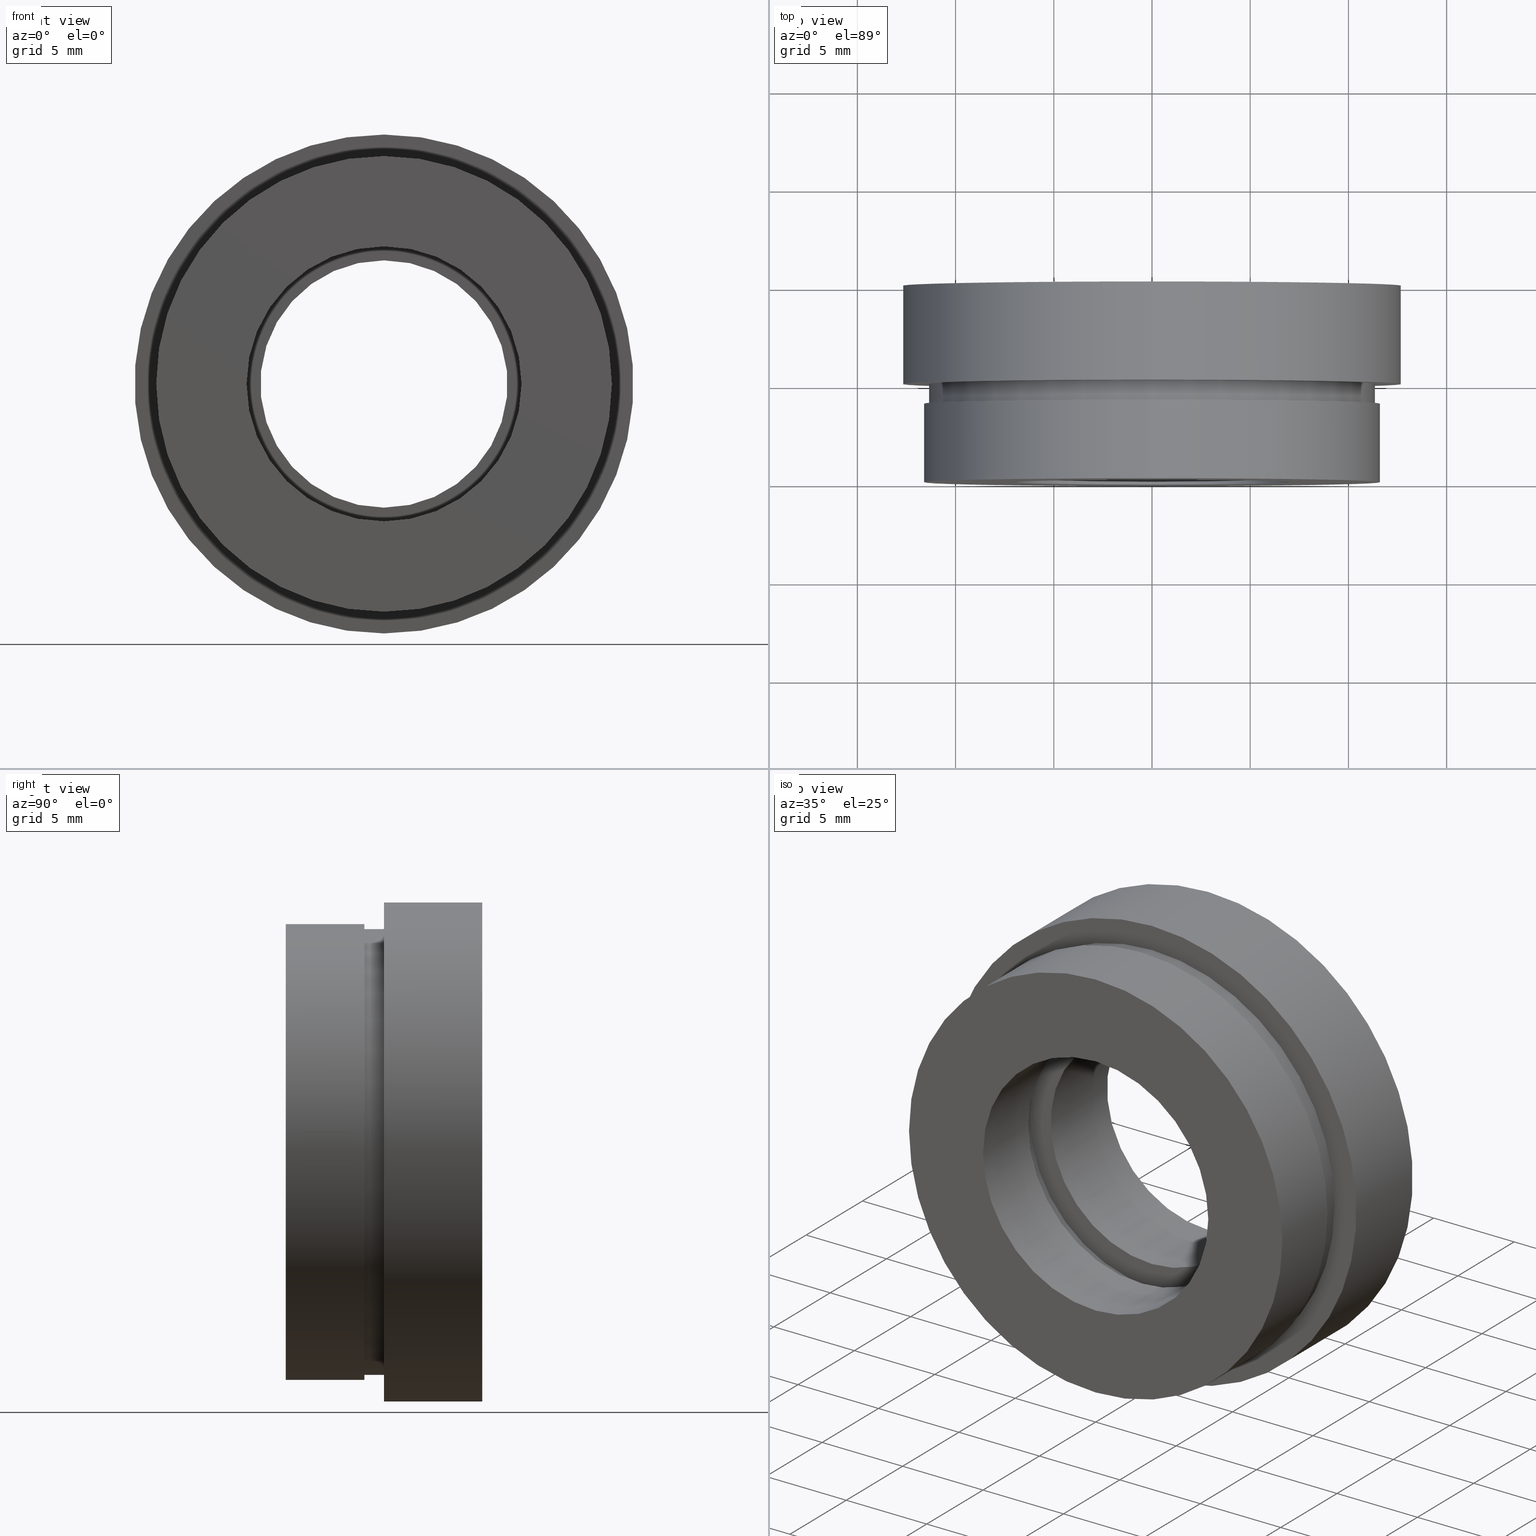
[diagram: canonical four-view strip — front | top / right | iso, engineering-drawing reading convention]
A machine part, canonical four-view strip (front | top / right | iso — engineering-drawing reading convention). The complete STEP part file that produces these views, byte-faithful:
ISO-10303-21;
HEADER;
FILE_DESCRIPTION (( 'STEP AP214' ),
    '1' );
FILE_NAME ('504136.STEP',
    '2019-10-11T01:36:10',
    ( 'user' ),
    ( '΢���й�' ),
    'SwSTEP 2.0',
    'SolidWorks 2016',
    '' );
FILE_SCHEMA (( 'AUTOMOTIVE_DESIGN' ));
ENDSEC;

DATA;
#1 = AXIS2_PLACEMENT_3D ( 'NONE', #479, #616, #488 ) ;
#2 = AXIS2_PLACEMENT_3D ( 'NONE', #32, #214, #441 ) ;
#3 = SURFACE_STYLE_USAGE ( .BOTH. , #409 ) ;
#4 = AXIS2_PLACEMENT_3D ( 'NONE', #496, #594, #503 ) ;
#5 = CARTESIAN_POINT ( 'NONE',  ( 0.0000000000000000000, 13.74468085106383300, 7.000000000000000900 ) ) ;
#6 = CARTESIAN_POINT ( 'NONE',  ( 0.0000000000000000000, 0.0000000000000000000, 0.0000000000000000000 ) ) ;
#7 =( LENGTH_UNIT ( ) NAMED_UNIT ( * ) SI_UNIT ( .MILLI., .METRE. ) );
#8 = ORIENTED_EDGE ( 'NONE', *, *, #388, .F. ) ;
#9 = SHAPE_DEFINITION_REPRESENTATION ( #318, #549 ) ;
#10 = EDGE_LOOP ( 'NONE', ( #489, #607 ) ) ;
#11 = CARTESIAN_POINT ( 'NONE',  ( 0.0000000000000000000, 4.000000000000000000, 0.0000000000000000000 ) ) ;
#12 = MECHANICAL_DESIGN_GEOMETRIC_PRESENTATION_REPRESENTATION (  '', ( #30 ), #422 ) ;
#13 = AXIS2_PLACEMENT_3D ( 'NONE', #235, #245, #289 ) ;
#14 = DIRECTION ( 'NONE',  ( 0.0000000000000000000, 0.0000000000000000000, 1.000000000000000000 ) ) ;
#15 = SURFACE_SIDE_STYLE ('',( #106 ) ) ;
#16 =( GEOMETRIC_REPRESENTATION_CONTEXT ( 3 ) GLOBAL_UNCERTAINTY_ASSIGNED_CONTEXT ( ( #236 ) ) GLOBAL_UNIT_ASSIGNED_CONTEXT ( ( #477, #458, #460 ) ) REPRESENTATION_CONTEXT ( 'NONE', 'WORKASPACE' ) );
#17 = APPLICATION_PROTOCOL_DEFINITION ( 'draft international standard', 'automotive_design', 1998, #405 ) ;
#18 = ADVANCED_FACE ( 'NONE', ( #232 ), #553, .T. ) ;
#19 = UNCERTAINTY_MEASURE_WITH_UNIT (LENGTH_MEASURE( 1.000000000000000100E-005 ), #513, 'distance_accuracy_value', 'NONE');
#20 = VERTEX_POINT ( 'NONE', #261 ) ;
#21 = CIRCLE ( 'NONE', #583, 11.35000000000000000 ) ;
#22 = CARTESIAN_POINT ( 'NONE',  ( 0.0000000000000000000, 5.000000000000000900, 0.0000000000000000000 ) ) ;
#23 = PLANE ( 'NONE',  #599 ) ;
#24 = DIRECTION ( 'NONE',  ( -0.0000000000000000000, 1.000000000000000000, -0.0000000000000000000 ) ) ;
#25 = VECTOR ( 'NONE', #402, 1000.000000000000000 ) ;
#26 = CARTESIAN_POINT ( 'NONE',  ( 0.0000000000000000000, 4.999999999999999100, 0.0000000000000000000 ) ) ;
#27 = CYLINDRICAL_SURFACE ( 'NONE', #280, 7.600000000000000500 ) ;
#28 = CYLINDRICAL_SURFACE ( 'NONE', #325, 12.70000000000000100 ) ;
#29 = ORIENTED_EDGE ( 'NONE', *, *, #425, .F. ) ;
#30 = STYLED_ITEM ( 'NONE', ( #560 ), #563 ) ;
#31 = DIRECTION ( 'NONE',  ( -0.0000000000000000000, 1.000000000000000000, -0.0000000000000000000 ) ) ;
#32 = CARTESIAN_POINT ( 'NONE',  ( 0.0000000000000000000, 0.0000000000000000000, 0.0000000000000000000 ) ) ;
#33 = PRESENTATION_LAYER_ASSIGNMENT (  '', '', ( #40 ) ) ;
#34 = DIRECTION ( 'NONE',  ( -0.0000000000000000000, 1.000000000000000000, -0.0000000000000000000 ) ) ;
#35 = EDGE_LOOP ( 'NONE', ( #302, #528 ) ) ;
#36 = DIRECTION ( 'NONE',  ( 0.0000000000000000000, 0.0000000000000000000, 1.000000000000000000 ) ) ;
#37 = EDGE_LOOP ( 'NONE', ( #588, #603, #536, #210 ) ) ;
#38 = DIRECTION ( 'NONE',  ( 0.0000000000000000000, 0.0000000000000000000, 1.000000000000000000 ) ) ;
#39 = CARTESIAN_POINT ( 'NONE',  ( 0.0000000000000000000, 4.000000000000000000, 0.0000000000000000000 ) ) ;
#40 = STYLED_ITEM ( 'NONE', ( #241 ), #522 ) ;
#41 = FACE_OUTER_BOUND ( 'NONE', #359, .T. ) ;
#42 = CIRCLE ( 'NONE', #365, 11.60000000000000000 ) ;
#43 = CIRCLE ( 'NONE', #111, 11.60000000000000000 ) ;
#44 = CLOSED_SHELL ( 'NONE', ( #326, #333, #61, #181, #523, #273, #563, #557, #225, #69, #476, #384, #123, #381, #18, #606, #522, #129 ) ) ;
#45 = DIRECTION ( 'NONE',  ( 0.0000000000000000000, 0.0000000000000000000, 1.000000000000000000 ) ) ;
#46 = DIRECTION ( 'NONE',  ( 0.0000000000000000000, 0.0000000000000000000, 1.000000000000000000 ) ) ;
#47 = DIRECTION ( 'NONE',  ( 0.0000000000000000000, 0.0000000000000000000, 1.000000000000000000 ) ) ;
#48 = AXIS2_PLACEMENT_3D ( 'NONE', #76, #263, #79 ) ;
#49 = SURFACE_STYLE_FILL_AREA ( #196 ) ;
#50 = LINE ( 'NONE', #131, #64 ) ;
#51 = EDGE_LOOP ( 'NONE', ( #368, #535 ) ) ;
#52 = LINE ( 'NONE', #526, #25 ) ;
#53 = ORIENTED_EDGE ( 'NONE', *, *, #604, .T. ) ;
#54 = DIRECTION ( 'NONE',  ( 0.0000000000000000000, 0.0000000000000000000, 1.000000000000000000 ) ) ;
#55 = AXIS2_PLACEMENT_3D ( 'NONE', #274, #265, #387 ) ;
#56 = CARTESIAN_POINT ( 'NONE',  ( 0.0000000000000000000, 13.74468085106383300, 0.0000000000000000000 ) ) ;
#57 = LINE ( 'NONE', #529, #134 ) ;
#58 = PRESENTATION_STYLE_ASSIGNMENT (( #255 ) ) ;
#59 = ORIENTED_EDGE ( 'NONE', *, *, #478, .T. ) ;
#60 = DIRECTION ( 'NONE',  ( -0.0000000000000000000, 1.000000000000000000, -0.0000000000000000000 ) ) ;
#61 = ADVANCED_FACE ( 'NONE', ( #386 ), #300, .T. ) ;
#62 = DIRECTION ( 'NONE',  ( 0.0000000000000000000, 0.0000000000000000000, 1.000000000000000000 ) ) ;
#63 = SURFACE_STYLE_FILL_AREA ( #251 ) ;
#64 = VECTOR ( 'NONE', #282, 1000.000000000000000 ) ;
#65 = UNCERTAINTY_MEASURE_WITH_UNIT (LENGTH_MEASURE( 1.000000000000000100E-005 ), #455, 'distance_accuracy_value', 'NONE');
#66 = EDGE_LOOP ( 'NONE', ( #217, #584 ) ) ;
#67 = MECHANICAL_DESIGN_GEOMETRIC_PRESENTATION_REPRESENTATION (  '', ( #40 ), #16 ) ;
#68 = DIRECTION ( 'NONE',  ( 0.0000000000000000000, 0.0000000000000000000, 1.000000000000000000 ) ) ;
#69 = ADVANCED_FACE ( 'NONE', ( #186, #170 ), #206, .F. ) ;
#70 = DIRECTION ( 'NONE',  ( 0.0000000000000000000, 0.0000000000000000000, 1.000000000000000000 ) ) ;
#71 = AXIS2_PLACEMENT_3D ( 'NONE', #545, #547, #47 ) ;
#72 = CARTESIAN_POINT ( 'NONE',  ( 1.555301434917138600E-015, 13.74468085106383300, -12.70000000000000100 ) ) ;
#73 = LINE ( 'NONE', #346, #493 ) ;
#74 = ORIENTED_EDGE ( 'NONE', *, *, #618, .T. ) ;
#75 =( GEOMETRIC_REPRESENTATION_CONTEXT ( 3 ) GLOBAL_UNCERTAINTY_ASSIGNED_CONTEXT ( ( #117 ) ) GLOBAL_UNIT_ASSIGNED_CONTEXT ( ( #304, #389, #382 ) ) REPRESENTATION_CONTEXT ( 'NONE', 'WORKASPACE' ) );
#76 = CARTESIAN_POINT ( 'NONE',  ( 0.0000000000000000000, 4.000000000000000000, 0.0000000000000000000 ) ) ;
#77 = ORIENTED_EDGE ( 'NONE', *, *, #395, .T. ) ;
#78 = AXIS2_PLACEMENT_3D ( 'NONE', #505, #341, #444 ) ;
#79 = DIRECTION ( 'NONE',  ( 0.0000000000000000000, 0.0000000000000000000, 1.000000000000000000 ) ) ;
#80 = EDGE_CURVE ( 'NONE', #146, #172, #42, .T. ) ;
#81 = DIRECTION ( 'NONE',  ( 0.0000000000000000000, 0.0000000000000000000, 1.000000000000000000 ) ) ;
#82 = PRESENTATION_LAYER_ASSIGNMENT (  '', '', ( #89 ) ) ;
#83 = FACE_OUTER_BOUND ( 'NONE', #518, .T. ) ;
#84 = CARTESIAN_POINT ( 'NONE',  ( 0.0000000000000000000, 13.74468085106383300, 0.0000000000000000000 ) ) ;
#85 = FACE_OUTER_BOUND ( 'NONE', #223, .T. ) ;
#86 = LINE ( 'NONE', #370, #364 ) ;
#87 = VERTEX_POINT ( 'NONE', #159 ) ;
#88 = VERTEX_POINT ( 'NONE', #107 ) ;
#89 = STYLED_ITEM ( 'NONE', ( #240 ), #476 ) ;
#90 = CARTESIAN_POINT ( 'NONE',  ( 0.0000000000000000000, 10.00000000000000000, 0.0000000000000000000 ) ) ;
#91 = DIRECTION ( 'NONE',  ( -0.0000000000000000000, 1.000000000000000000, -0.0000000000000000000 ) ) ;
#92 = DIRECTION ( 'NONE',  ( -0.0000000000000000000, 1.000000000000000000, -0.0000000000000000000 ) ) ;
#93 = MECHANICAL_DESIGN_GEOMETRIC_PRESENTATION_REPRESENTATION (  '', ( #89 ), #75 ) ;
#94 = SURFACE_STYLE_FILL_AREA ( #306 ) ;
#95 = FACE_OUTER_BOUND ( 'NONE', #344, .T. ) ;
#96 = VERTEX_POINT ( 'NONE', #118 ) ;
#97 = DIRECTION ( 'NONE',  ( 0.0000000000000000000, 0.0000000000000000000, 1.000000000000000000 ) ) ;
#98 = CARTESIAN_POINT ( 'NONE',  ( 0.0000000000000000000, 10.00000000000000000, 12.70000000000000100 ) ) ;
#99 = DIRECTION ( 'NONE',  ( -0.0000000000000000000, 1.000000000000000000, -0.0000000000000000000 ) ) ;
#100 = AXIS2_PLACEMENT_3D ( 'NONE', #113, #115, #125 ) ;
#101 = STYLED_ITEM ( 'NONE', ( #311 ), #549 ) ;
#102 = LINE ( 'NONE', #72, #461 ) ;
#103 = COLOUR_RGB ( '',1.000000000000000000, 1.000000000000000000, 1.000000000000000000 ) ;
#104 = LINE ( 'NONE', #5, #602 ) ;
#105 = FILL_AREA_STYLE_COLOUR ( '', #291 ) ;
#106 = SURFACE_STYLE_FILL_AREA ( #248 ) ;
#107 = CARTESIAN_POINT ( 'NONE',  ( 8.572527594031474200E-016, 4.000000000000000000, -7.000000000000000900 ) ) ;
#108 = AXIS2_PLACEMENT_3D ( 'NONE', #363, #369, #380 ) ;
#109 = DIRECTION ( 'NONE',  ( -0.0000000000000000000, 1.000000000000000000, 0.0000000000000000000 ) ) ;
#110 = DIRECTION ( 'NONE',  ( 0.0000000000000000000, 0.0000000000000000000, 1.000000000000000000 ) ) ;
#111 = AXIS2_PLACEMENT_3D ( 'NONE', #215, #218, #228 ) ;
#112 = FACE_OUTER_BOUND ( 'NONE', #623, .T. ) ;
#113 = CARTESIAN_POINT ( 'NONE',  ( 0.0000000000000000000, 10.00000000000000000, 0.0000000000000000000 ) ) ;
#114 = ORIENTED_EDGE ( 'NONE', *, *, #449, .F. ) ;
#115 = DIRECTION ( 'NONE',  ( -0.0000000000000000000, 1.000000000000000000, -0.0000000000000000000 ) ) ;
#116 = AXIS2_PLACEMENT_3D ( 'NONE', #191, #226, #203 ) ;
#117 = UNCERTAINTY_MEASURE_WITH_UNIT (LENGTH_MEASURE( 1.000000000000000100E-005 ), #304, 'distance_accuracy_value', 'NONE');
#118 = CARTESIAN_POINT ( 'NONE',  ( 0.0000000000000000000, 4.999999999999999100, 7.600000000000001400 ) ) ;
#119 = FACE_BOUND ( 'NONE', #35, .T. ) ;
#120 = AXIS2_PLACEMENT_3D ( 'NONE', #22, #624, #166 ) ;
#121 = ORIENTED_EDGE ( 'NONE', *, *, #509, .F. ) ;
#122 = ORIENTED_EDGE ( 'NONE', *, *, #509, .T. ) ;
#123 = ADVANCED_FACE ( 'NONE', ( #321 ), #28, .T. ) ;
#124 = AXIS2_PLACEMENT_3D ( 'NONE', #150, #152, #153 ) ;
#125 = DIRECTION ( 'NONE',  ( 0.0000000000000000000, 0.0000000000000000000, 1.000000000000000000 ) ) ;
#126 = ORIENTED_EDGE ( 'NONE', *, *, #618, .F. ) ;
#127 = VERTEX_POINT ( 'NONE', #440 ) ;
#128 = AXIS2_PLACEMENT_3D ( 'NONE', #362, #160, #45 ) ;
#129 = ADVANCED_FACE ( 'NONE', ( #421, #285 ), #374, .F. ) ;
#130 = EDGE_LOOP ( 'NONE', ( #121, #475 ) ) ;
#131 = CARTESIAN_POINT ( 'NONE',  ( 0.0000000000000000000, 13.74468085106383300, 6.295000000000001700 ) ) ;
#132 = CARTESIAN_POINT ( 'NONE',  ( 0.0000000000000000000, 10.00000000000000000, 0.0000000000000000000 ) ) ;
#133 = DIRECTION ( 'NONE',  ( -0.0000000000000000000, 1.000000000000000000, -0.0000000000000000000 ) ) ;
#134 = VECTOR ( 'NONE', #445, 1000.000000000000000 ) ;
#135 = ORIENTED_EDGE ( 'NONE', *, *, #473, .F. ) ;
#136 = AXIS2_PLACEMENT_3D ( 'NONE', #11, #24, #269 ) ;
#137 = FILL_AREA_STYLE_COLOUR ( '', #434 ) ;
#138 = VERTEX_POINT ( 'NONE', #246 ) ;
#139 = PRODUCT_DEFINITION ( 'δ֪', '', #378, #579 ) ;
#140 = UNCERTAINTY_MEASURE_WITH_UNIT (LENGTH_MEASURE( 1.000000000000000100E-005 ), #308, 'distance_accuracy_value', 'NONE');
#141 =( LENGTH_UNIT ( ) NAMED_UNIT ( * ) SI_UNIT ( .MILLI., .METRE. ) );
#142 = AXIS2_PLACEMENT_3D ( 'NONE', #26, #31, #36 ) ;
#143 =( NAMED_UNIT ( * ) SI_UNIT ( $, .STERADIAN. ) SOLID_ANGLE_UNIT ( ) );
#144 = VERTEX_POINT ( 'NONE', #578 ) ;
#145 = COLOUR_RGB ( '',1.000000000000000000, 1.000000000000000000, 1.000000000000000000 ) ;
#146 = VERTEX_POINT ( 'NONE', #534 ) ;
#147 = EDGE_LOOP ( 'NONE', ( #351, #525 ) ) ;
#148 = AXIS2_PLACEMENT_3D ( 'NONE', #358, #556, #337 ) ;
#149 = DIRECTION ( 'NONE',  ( 0.0000000000000000000, 0.0000000000000000000, 1.000000000000000000 ) ) ;
#150 = CARTESIAN_POINT ( 'NONE',  ( 0.0000000000000000000, 5.000000000000000900, 0.0000000000000000000 ) ) ;
#151 = DIRECTION ( 'NONE',  ( 1.000000000000000000, 0.0000000000000000000, 0.0000000000000000000 ) ) ;
#152 = DIRECTION ( 'NONE',  ( -0.0000000000000000000, 1.000000000000000000, -0.0000000000000000000 ) ) ;
#153 = DIRECTION ( 'NONE',  ( 0.0000000000000000000, 0.0000000000000000000, 1.000000000000000000 ) ) ;
#154 = VERTEX_POINT ( 'NONE', #98 ) ;
#155 = AXIS2_PLACEMENT_3D ( 'NONE', #39, #543, #564 ) ;
#156 = CARTESIAN_POINT ( 'NONE',  ( 0.0000000000000000000, 4.000000000000000000, 11.35000000000000000 ) ) ;
#157 = DIRECTION ( 'NONE',  ( -0.0000000000000000000, 1.000000000000000000, -0.0000000000000000000 ) ) ;
#158 = CARTESIAN_POINT ( 'NONE',  ( 0.0000000000000000000, 13.74468085106383300, 0.0000000000000000000 ) ) ;
#159 = CARTESIAN_POINT ( 'NONE',  ( 0.0000000000000000000, 0.0000000000000000000, 7.000000000000001800 ) ) ;
#160 = DIRECTION ( 'NONE',  ( -0.0000000000000000000, 1.000000000000000000, -0.0000000000000000000 ) ) ;
#161 = ORIENTED_EDGE ( 'NONE', *, *, #473, .T. ) ;
#162 = EDGE_LOOP ( 'NONE', ( #292, #435, #487, #8 ) ) ;
#163 = CARTESIAN_POINT ( 'NONE',  ( 1.389974117032245900E-015, 13.74468085106383300, -11.35000000000000000 ) ) ;
#164 = AXIS2_PLACEMENT_3D ( 'NONE', #132, #133, #149 ) ;
#165 = FILL_AREA_STYLE_COLOUR ( '', #145 ) ;
#166 = DIRECTION ( 'NONE',  ( 0.0000000000000000000, 0.0000000000000000000, 1.000000000000000000 ) ) ;
#167 =( NAMED_UNIT ( * ) PLANE_ANGLE_UNIT ( ) SI_UNIT ( $, .RADIAN. ) );
#168 = CARTESIAN_POINT ( 'NONE',  ( 0.0000000000000000000, 0.0000000000000000000, 0.0000000000000000000 ) ) ;
#169 = DIRECTION ( 'NONE',  ( -0.0000000000000000000, 1.000000000000000000, -0.0000000000000000000 ) ) ;
#170 = FACE_BOUND ( 'NONE', #51, .T. ) ;
#171 = FACE_OUTER_BOUND ( 'NONE', #567, .T. ) ;
#172 = VERTEX_POINT ( 'NONE', #294 ) ;
#173 = AXIS2_PLACEMENT_3D ( 'NONE', #424, #585, #570 ) ;
#174 = MECHANICAL_DESIGN_GEOMETRIC_PRESENTATION_REPRESENTATION (  '', ( #101 ), #205 ) ;
#175 =( NAMED_UNIT ( * ) SI_UNIT ( $, .STERADIAN. ) SOLID_ANGLE_UNIT ( ) );
#176 = AXIS2_PLACEMENT_3D ( 'NONE', #204, #109, #70 ) ;
#177 = VERTEX_POINT ( 'NONE', #620 ) ;
#178 = FACE_BOUND ( 'NONE', #130, .T. ) ;
#179 = EDGE_LOOP ( 'NONE', ( #474, #582 ) ) ;
#180 = DIRECTION ( 'NONE',  ( -0.0000000000000000000, 1.000000000000000000, -0.0000000000000000000 ) ) ;
#181 = ADVANCED_FACE ( 'NONE', ( #95 ), #427, .F. ) ;
#182 = FILL_AREA_STYLE ('',( #316 ) ) ;
#183 = AXIS2_PLACEMENT_3D ( 'NONE', #611, #609, #507 ) ;
#184 = CARTESIAN_POINT ( 'NONE',  ( 1.389974117032245900E-015, 4.000000000000000000, -11.35000000000000000 ) ) ;
#185 = VECTOR ( 'NONE', #297, 1000.000000000000000 ) ;
#186 = FACE_OUTER_BOUND ( 'NONE', #66, .T. ) ;
#187 = AXIS2_PLACEMENT_3D ( 'NONE', #419, #451, #62 ) ;
#188 = PLANE ( 'NONE',  #183 ) ;
#189 = PLANE ( 'NONE',  #176 ) ;
#190 = AXIS2_PLACEMENT_3D ( 'NONE', #84, #199, #411 ) ;
#191 = CARTESIAN_POINT ( 'NONE',  ( 0.0000000000000000000, 4.999999999999999100, 0.0000000000000000000 ) ) ;
#192 = COLOUR_RGB ( '',1.000000000000000000, 1.000000000000000000, 1.000000000000000000 ) ;
#193 = CIRCLE ( 'NONE', #120, 12.70000000000000100 ) ;
#194 = CIRCLE ( 'NONE', #124, 12.70000000000000100 ) ;
#195 = CIRCLE ( 'NONE', #142, 6.295000000000001700 ) ;
#196 = FILL_AREA_STYLE ('',( #450 ) ) ;
#197 = ORIENTED_EDGE ( 'NONE', *, *, #621, .T. ) ;
#198 = AXIS2_PLACEMENT_3D ( 'NONE', #168, #180, #97 ) ;
#199 = DIRECTION ( 'NONE',  ( -0.0000000000000000000, 1.000000000000000000, -0.0000000000000000000 ) ) ;
#200 = ORIENTED_EDGE ( 'NONE', *, *, #439, .T. ) ;
#201 = EDGE_LOOP ( 'NONE', ( #200, #511, #29, #418 ) ) ;
#202 = VERTEX_POINT ( 'NONE', #577 ) ;
#203 = DIRECTION ( 'NONE',  ( 0.0000000000000000000, 0.0000000000000000000, 1.000000000000000000 ) ) ;
#204 = CARTESIAN_POINT ( 'NONE',  ( 12.70000000000000100, 5.000000000000000900, 0.0000000000000000000 ) ) ;
#205 =( GEOMETRIC_REPRESENTATION_CONTEXT ( 3 ) GLOBAL_UNCERTAINTY_ASSIGNED_CONTEXT ( ( #339 ) ) GLOBAL_UNIT_ASSIGNED_CONTEXT ( ( #7, #586, #506 ) ) REPRESENTATION_CONTEXT ( 'NONE', 'WORKASPACE' ) );
#206 = PLANE ( 'NONE',  #357 ) ;
#207 = CYLINDRICAL_SURFACE ( 'NONE', #4, 11.60000000000000000 ) ;
#208 = ORIENTED_EDGE ( 'NONE', *, *, #393, .F. ) ;
#209 = APPLICATION_PROTOCOL_DEFINITION ( 'draft international standard', 'automotive_design', 1998, #249 ) ;
#210 = ORIENTED_EDGE ( 'NONE', *, *, #610, .F. ) ;
#211 = EDGE_CURVE ( 'NONE', #177, #154, #469, .T. ) ;
#212 = ORIENTED_EDGE ( 'NONE', *, *, #393, .T. ) ;
#213 = PRODUCT_CONTEXT ( 'NONE', #249, 'mechanical' ) ;
#214 = DIRECTION ( 'NONE',  ( -0.0000000000000000000, 1.000000000000000000, -0.0000000000000000000 ) ) ;
#215 = CARTESIAN_POINT ( 'NONE',  ( 0.0000000000000000000, 0.0000000000000000000, 0.0000000000000000000 ) ) ;
#216 = CYLINDRICAL_SURFACE ( 'NONE', #1, 7.600000000000000500 ) ;
#217 = ORIENTED_EDGE ( 'NONE', *, *, #532, .F. ) ;
#218 = DIRECTION ( 'NONE',  ( -0.0000000000000000000, 1.000000000000000000, -0.0000000000000000000 ) ) ;
#219 = EDGE_CURVE ( 'NONE', #608, #96, #73, .T. ) ;
#220 = MECHANICAL_DESIGN_GEOMETRIC_PRESENTATION_REPRESENTATION (  '', ( #247 ), #230 ) ;
#221 = CIRCLE ( 'NONE', #136, 11.60000000000000000 ) ;
#222 = CARTESIAN_POINT ( 'NONE',  ( 0.0000000000000000000, 13.74468085106383300, 0.0000000000000000000 ) ) ;
#223 = EDGE_LOOP ( 'NONE', ( #417, #447, #482, #250 ) ) ;
#224 = EDGE_LOOP ( 'NONE', ( #550, #342, #338, #575 ) ) ;
#225 = ADVANCED_FACE ( 'NONE', ( #112 ), #27, .F. ) ;
#226 = DIRECTION ( 'NONE',  ( -0.0000000000000000000, 1.000000000000000000, -0.0000000000000000000 ) ) ;
#227 =( NAMED_UNIT ( * ) SI_UNIT ( $, .STERADIAN. ) SOLID_ANGLE_UNIT ( ) );
#228 = DIRECTION ( 'NONE',  ( 0.0000000000000000000, 0.0000000000000000000, 1.000000000000000000 ) ) ;
#229 = DIRECTION ( 'NONE',  ( 0.0000000000000000000, 0.0000000000000000000, 1.000000000000000000 ) ) ;
#230 =( GEOMETRIC_REPRESENTATION_CONTEXT ( 3 ) GLOBAL_UNCERTAINTY_ASSIGNED_CONTEXT ( ( #65 ) ) GLOBAL_UNIT_ASSIGNED_CONTEXT ( ( #455, #457, #593 ) ) REPRESENTATION_CONTEXT ( 'NONE', 'WORKASPACE' ) );
#231 = CYLINDRICAL_SURFACE ( 'NONE', #187, 11.60000000000000000 ) ;
#232 = FACE_OUTER_BOUND ( 'NONE', #542, .T. ) ;
#233 = CARTESIAN_POINT ( 'NONE',  ( 0.0000000000000000000, 5.000000000000000900, 0.0000000000000000000 ) ) ;
#234 = ORIENTED_EDGE ( 'NONE', *, *, #219, .T. ) ;
#235 = CARTESIAN_POINT ( 'NONE',  ( 0.0000000000000000000, 4.999999999999999100, 0.0000000000000000000 ) ) ;
#236 = UNCERTAINTY_MEASURE_WITH_UNIT (LENGTH_MEASURE( 1.000000000000000100E-005 ), #477, 'distance_accuracy_value', 'NONE');
#237 = CARTESIAN_POINT ( 'NONE',  ( 1.420590287010929500E-015, 4.000000000000000000, -11.60000000000000000 ) ) ;
#238 = CIRCLE ( 'NONE', #155, 11.60000000000000000 ) ;
#239 = PRESENTATION_STYLE_ASSIGNMENT (( #452 ) ) ;
#240 = PRESENTATION_STYLE_ASSIGNMENT (( #467 ) ) ;
#241 = PRESENTATION_STYLE_ASSIGNMENT (( #470 ) ) ;
#242 = ORIENTED_EDGE ( 'NONE', *, *, #481, .T. ) ;
#243 = ORIENTED_EDGE ( 'NONE', *, *, #532, .T. ) ;
#244 = ORIENTED_EDGE ( 'NONE', *, *, #449, .T. ) ;
#245 = DIRECTION ( 'NONE',  ( -0.0000000000000000000, 1.000000000000000000, -0.0000000000000000000 ) ) ;
#246 = CARTESIAN_POINT ( 'NONE',  ( 0.0000000000000000000, 10.00000000000000000, 6.295000000000001700 ) ) ;
#247 = STYLED_ITEM ( 'NONE', ( #239 ), #326 ) ;
#248 = FILL_AREA_STYLE ('',( #105 ) ) ;
#249 = APPLICATION_CONTEXT ( 'automotive_design' ) ;
#250 = ORIENTED_EDGE ( 'NONE', *, *, #219, .F. ) ;
#251 = FILL_AREA_STYLE ('',( #396 ) ) ;
#252 = AXIS2_PLACEMENT_3D ( 'NONE', #158, #92, #591 ) ;
#253 = PLANE ( 'NONE',  #323 ) ;
#254 =( GEOMETRIC_REPRESENTATION_CONTEXT ( 3 ) GLOBAL_UNCERTAINTY_ASSIGNED_CONTEXT ( ( #295 ) ) GLOBAL_UNIT_ASSIGNED_CONTEXT ( ( #392, #508, #568 ) ) REPRESENTATION_CONTEXT ( 'NONE', 'WORKASPACE' ) );
#255 = SURFACE_STYLE_USAGE ( .BOTH. , #15 ) ;
#256 = CYLINDRICAL_SURFACE ( 'NONE', #516, 7.000000000000000900 ) ;
#257 = MANIFOLD_SOLID_BREP ( '��ת1', #44 ) ;
#258 = ORIENTED_EDGE ( 'NONE', *, *, #425, .T. ) ;
#259 = PRESENTATION_LAYER_ASSIGNMENT (  '', '', ( #247 ) ) ;
#260 = SURFACE_SIDE_STYLE ('',( #541 ) ) ;
#261 = CARTESIAN_POINT ( 'NONE',  ( 1.555301434917138600E-015, 10.00000000000000000, -12.70000000000000100 ) ) ;
#262 = PRESENTATION_LAYER_ASSIGNMENT (  '', '', ( #275 ) ) ;
#263 = DIRECTION ( 'NONE',  ( -0.0000000000000000000, 1.000000000000000000, -0.0000000000000000000 ) ) ;
#264 = ORIENTED_EDGE ( 'NONE', *, *, #383, .F. ) ;
#265 = DIRECTION ( 'NONE',  ( -0.0000000000000000000, 1.000000000000000000, -0.0000000000000000000 ) ) ;
#266 = ORIENTED_EDGE ( 'NONE', *, *, #468, .T. ) ;
#267 = EDGE_LOOP ( 'NONE', ( #400, #197 ) ) ;
#268 = MECHANICAL_DESIGN_GEOMETRIC_PRESENTATION_REPRESENTATION (  '', ( #275 ), #254 ) ;
#269 = DIRECTION ( 'NONE',  ( 0.0000000000000000000, 0.0000000000000000000, 1.000000000000000000 ) ) ;
#270 =( GEOMETRIC_REPRESENTATION_CONTEXT ( 3 ) GLOBAL_UNCERTAINTY_ASSIGNED_CONTEXT ( ( #490 ) ) GLOBAL_UNIT_ASSIGNED_CONTEXT ( ( #407, #537, #175 ) ) REPRESENTATION_CONTEXT ( 'NONE', 'WORKASPACE' ) );
#271 = CIRCLE ( 'NONE', #2, 7.000000000000001800 ) ;
#272 = CARTESIAN_POINT ( 'NONE',  ( 0.0000000000000000000, 13.74468085106383300, 0.0000000000000000000 ) ) ;
#273 = ADVANCED_FACE ( 'NONE', ( #328 ), #615, .F. ) ;
#274 = CARTESIAN_POINT ( 'NONE',  ( 0.0000000000000000000, 13.74468085106383300, 0.0000000000000000000 ) ) ;
#275 = STYLED_ITEM ( 'NONE', ( #309 ), #273 ) ;
#276 = FILL_AREA_STYLE_COLOUR ( '', #373 ) ;
#277 = ORIENTED_EDGE ( 'NONE', *, *, #613, .F. ) ;
#278 = ORIENTED_EDGE ( 'NONE', *, *, #388, .T. ) ;
#279 = SURFACE_SIDE_STYLE ('',( #601 ) ) ;
#280 = AXIS2_PLACEMENT_3D ( 'NONE', #272, #514, #110 ) ;
#281 = MECHANICAL_DESIGN_GEOMETRIC_PRESENTATION_REPRESENTATION (  '', ( #296 ), #270 ) ;
#282 = DIRECTION ( 'NONE',  ( -0.0000000000000000000, 1.000000000000000000, -0.0000000000000000000 ) ) ;
#283 = PRESENTATION_LAYER_ASSIGNMENT (  '', '', ( #296 ) ) ;
#284 = CIRCLE ( 'NONE', #71, 7.600000000000001400 ) ;
#285 = FACE_BOUND ( 'NONE', #267, .T. ) ;
#286 = VERTEX_POINT ( 'NONE', #515 ) ;
#287 = CARTESIAN_POINT ( 'NONE',  ( 8.572527594031475200E-016, 0.0000000000000000000, -7.000000000000002700 ) ) ;
#288 = AXIS2_PLACEMENT_3D ( 'NONE', #531, #91, #81 ) ;
#289 = DIRECTION ( 'NONE',  ( 0.0000000000000000000, 0.0000000000000000000, 1.000000000000000000 ) ) ;
#290 =( GEOMETRIC_REPRESENTATION_CONTEXT ( 3 ) GLOBAL_UNCERTAINTY_ASSIGNED_CONTEXT ( ( #307 ) ) GLOBAL_UNIT_ASSIGNED_CONTEXT ( ( #141, #492, #143 ) ) REPRESENTATION_CONTEXT ( 'NONE', 'WORKASPACE' ) );
#291 = COLOUR_RGB ( '',1.000000000000000000, 1.000000000000000000, 1.000000000000000000 ) ;
#292 = ORIENTED_EDGE ( 'NONE', *, *, #80, .T. ) ;
#293 = ORIENTED_EDGE ( 'NONE', *, *, #401, .T. ) ;
#294 = CARTESIAN_POINT ( 'NONE',  ( 1.420590287010929500E-015, 0.0000000000000000000, -11.60000000000000000 ) ) ;
#295 = UNCERTAINTY_MEASURE_WITH_UNIT (LENGTH_MEASURE( 1.000000000000000100E-005 ), #392, 'distance_accuracy_value', 'NONE');
#296 = STYLED_ITEM ( 'NONE', ( #58 ), #257 ) ;
#297 = DIRECTION ( 'NONE',  ( -0.0000000000000000000, 1.000000000000000000, -0.0000000000000000000 ) ) ;
#298 = PRESENTATION_LAYER_ASSIGNMENT (  '', '', ( #335 ) ) ;
#299 = SURFACE_STYLE_USAGE ( .BOTH. , #279 ) ;
#300 = CYLINDRICAL_SURFACE ( 'NONE', #347, 12.70000000000000100 ) ;
#301 = LINE ( 'NONE', #163, #185 ) ;
#302 = ORIENTED_EDGE ( 'NONE', *, *, #604, .F. ) ;
#303 = DIRECTION ( 'NONE',  ( -0.0000000000000000000, 1.000000000000000000, -0.0000000000000000000 ) ) ;
#304 =( LENGTH_UNIT ( ) NAMED_UNIT ( * ) SI_UNIT ( .MILLI., .METRE. ) );
#305 = AXIS2_PLACEMENT_3D ( 'NONE', #596, #379, #151 ) ;
#306 = FILL_AREA_STYLE ('',( #165 ) ) ;
#307 = UNCERTAINTY_MEASURE_WITH_UNIT (LENGTH_MEASURE( 1.000000000000000100E-005 ), #141, 'distance_accuracy_value', 'NONE');
#308 =( LENGTH_UNIT ( ) NAMED_UNIT ( * ) SI_UNIT ( .MILLI., .METRE. ) );
#309 = PRESENTATION_STYLE_ASSIGNMENT (( #612 ) ) ;
#310 = CARTESIAN_POINT ( 'NONE',  ( 0.0000000000000000000, 4.000000000000000000, 11.60000000000000000 ) ) ;
#311 = PRESENTATION_STYLE_ASSIGNMENT (( #3 ) ) ;
#312 = ORIENTED_EDGE ( 'NONE', *, *, #510, .T. ) ;
#313 = FACE_OUTER_BOUND ( 'NONE', #224, .T. ) ;
#314 = ORIENTED_EDGE ( 'NONE', *, *, #432, .F. ) ;
#315 = MECHANICAL_DESIGN_GEOMETRIC_PRESENTATION_REPRESENTATION (  '', ( #335 ), #290 ) ;
#316 = FILL_AREA_STYLE_COLOUR ( '', #565 ) ;
#317 = CARTESIAN_POINT ( 'NONE',  ( 0.0000000000000000000, 13.74468085106383300, 11.60000000000000000 ) ) ;
#318 = PRODUCT_DEFINITION_SHAPE ( 'NONE', 'NONE',  #139 ) ;
#319 = DIRECTION ( 'NONE',  ( -0.0000000000000000000, 1.000000000000000000, -0.0000000000000000000 ) ) ;
#320 = DIRECTION ( 'NONE',  ( -0.0000000000000000000, 1.000000000000000000, -0.0000000000000000000 ) ) ;
#321 = FACE_OUTER_BOUND ( 'NONE', #37, .T. ) ;
#322 = CIRCLE ( 'NONE', #116, 6.295000000000001700 ) ;
#323 = AXIS2_PLACEMENT_3D ( 'NONE', #324, #426, #430 ) ;
#324 = CARTESIAN_POINT ( 'NONE',  ( 7.000000000000000900, 3.999999999999999100, 0.0000000000000000000 ) ) ;
#325 = AXIS2_PLACEMENT_3D ( 'NONE', #412, #410, #544 ) ;
#326 = ADVANCED_FACE ( 'NONE', ( #372 ), #231, .T. ) ;
#327 = CARTESIAN_POINT ( 'NONE',  ( 1.420590287010929500E-015, 13.74468085106383300, -11.60000000000000000 ) ) ;
#328 = FACE_OUTER_BOUND ( 'NONE', #385, .T. ) ;
#329 = CIRCLE ( 'NONE', #164, 12.70000000000000100 ) ;
#330 = VERTEX_POINT ( 'NONE', #156 ) ;
#331 = CIRCLE ( 'NONE', #100, 6.295000000000001700 ) ;
#332 = AXIS2_PLACEMENT_3D ( 'NONE', #398, #355, #38 ) ;
#333 = ADVANCED_FACE ( 'NONE', ( #519 ), #446, .T. ) ;
#334 = DIRECTION ( 'NONE',  ( -0.0000000000000000000, 1.000000000000000000, -0.0000000000000000000 ) ) ;
#335 = STYLED_ITEM ( 'NONE', ( #453 ), #181 ) ;
#336 = CIRCLE ( 'NONE', #456, 6.295000000000001700 ) ;
#337 = DIRECTION ( 'NONE',  ( 0.0000000000000000000, 0.0000000000000000000, 1.000000000000000000 ) ) ;
#338 = ORIENTED_EDGE ( 'NONE', *, *, #383, .T. ) ;
#339 = UNCERTAINTY_MEASURE_WITH_UNIT (LENGTH_MEASURE( 1.000000000000000100E-005 ), #7, 'distance_accuracy_value', 'NONE');
#340 = DIRECTION ( 'NONE',  ( 0.0000000000000000000, -0.0000000000000000000, -1.000000000000000000 ) ) ;
#341 = DIRECTION ( 'NONE',  ( -0.0000000000000000000, 1.000000000000000000, -0.0000000000000000000 ) ) ;
#342 = ORIENTED_EDGE ( 'NONE', *, *, #371, .F. ) ;
#343 = CARTESIAN_POINT ( 'NONE',  ( 0.0000000000000000000, 4.000000000000000000, 0.0000000000000000000 ) ) ;
#344 = EDGE_LOOP ( 'NONE', ( #415, #74, #622, #114 ) ) ;
#345 = DIRECTION ( 'NONE',  ( 0.0000000000000000000, -1.000000000000000000, 0.0000000000000000000 ) ) ;
#346 = CARTESIAN_POINT ( 'NONE',  ( 0.0000000000000000000, 13.74468085106383300, 7.600000000000000500 ) ) ;
#347 = AXIS2_PLACEMENT_3D ( 'NONE', #56, #597, #68 ) ;
#348 = CARTESIAN_POINT ( 'NONE',  ( 0.0000000000000000000, 10.00000000000000000, 0.0000000000000000000 ) ) ;
#349 = SURFACE_SIDE_STYLE ('',( #49 ) ) ;
#350 = DIRECTION ( 'NONE',  ( -0.0000000000000000000, 1.000000000000000000, -0.0000000000000000000 ) ) ;
#351 = ORIENTED_EDGE ( 'NONE', *, *, #439, .F. ) ;
#352 = EDGE_LOOP ( 'NONE', ( #126, #314, #244, #53 ) ) ;
#353 = DIRECTION ( 'NONE',  ( 0.0000000000000000000, 0.0000000000000000000, 1.000000000000000000 ) ) ;
#354 = PRESENTATION_LAYER_ASSIGNMENT (  '', '', ( #30 ) ) ;
#355 = DIRECTION ( 'NONE',  ( -0.0000000000000000000, 1.000000000000000000, 0.0000000000000000000 ) ) ;
#356 = CIRCLE ( 'NONE', #173, 7.600000000000000500 ) ;
#357 = AXIS2_PLACEMENT_3D ( 'NONE', #605, #521, #46 ) ;
#358 = CARTESIAN_POINT ( 'NONE',  ( 0.0000000000000000000, 4.000000000000000000, 0.0000000000000000000 ) ) ;
#359 = EDGE_LOOP ( 'NONE', ( #595, #266, #278, #524 ) ) ;
#360 = LINE ( 'NONE', #317, #485 ) ;
#361 = ORIENTED_EDGE ( 'NONE', *, *, #459, .T. ) ;
#362 = CARTESIAN_POINT ( 'NONE',  ( 0.0000000000000000000, 4.000000000000000000, 0.0000000000000000000 ) ) ;
#363 = CARTESIAN_POINT ( 'NONE',  ( 0.0000000000000000000, 5.000000000000000900, 0.0000000000000000000 ) ) ;
#364 = VECTOR ( 'NONE', #169, 1000.000000000000000 ) ;
#365 = AXIS2_PLACEMENT_3D ( 'NONE', #6, #157, #406 ) ;
#366 = VECTOR ( 'NONE', #303, 1000.000000000000000 ) ;
#367 = AXIS2_PLACEMENT_3D ( 'NONE', #222, #548, #465 ) ;
#368 = ORIENTED_EDGE ( 'NONE', *, *, #432, .T. ) ;
#369 = DIRECTION ( 'NONE',  ( -0.0000000000000000000, 1.000000000000000000, -0.0000000000000000000 ) ) ;
#370 = CARTESIAN_POINT ( 'NONE',  ( 7.709151600632590500E-016, 13.74468085106383300, -6.295000000000001700 ) ) ;
#371 = EDGE_CURVE ( 'NONE', #87, #471, #540, .T. ) ;
#372 = FACE_OUTER_BOUND ( 'NONE', #162, .T. ) ;
#373 = COLOUR_RGB ( '',1.000000000000000000, 1.000000000000000000, 1.000000000000000000 ) ;
#374 = PLANE ( 'NONE',  #332 ) ;
#375 = EDGE_LOOP ( 'NONE', ( #258, #569 ) ) ;
#376 = FACE_BOUND ( 'NONE', #10, .T. ) ;
#377 = VERTEX_POINT ( 'NONE', #184 ) ;
#378 = PRODUCT_DEFINITION_FORMATION_WITH_SPECIFIED_SOURCE ( '�κ�', '', #472, .NOT_KNOWN. ) ;
#379 = DIRECTION ( 'NONE',  ( 0.0000000000000000000, 0.0000000000000000000, 1.000000000000000000 ) ) ;
#380 = DIRECTION ( 'NONE',  ( 0.0000000000000000000, 0.0000000000000000000, 1.000000000000000000 ) ) ;
#381 = ADVANCED_FACE ( 'NONE', ( #420, #566 ), #189, .F. ) ;
#382 =( NAMED_UNIT ( * ) SI_UNIT ( $, .STERADIAN. ) SOLID_ANGLE_UNIT ( ) );
#383 = EDGE_CURVE ( 'NONE', #87, #561, #104, .T. ) ;
#384 = ADVANCED_FACE ( 'NONE', ( #119, #429 ), #188, .F. ) ;
#385 = EDGE_LOOP ( 'NONE', ( #504, #312, #59, #264 ) ) ;
#386 = FACE_OUTER_BOUND ( 'NONE', #201, .T. ) ;
#387 = DIRECTION ( 'NONE',  ( 0.0000000000000000000, 0.0000000000000000000, 1.000000000000000000 ) ) ;
#388 = EDGE_CURVE ( 'NONE', #146, #520, #360, .T. ) ;
#389 =( NAMED_UNIT ( * ) PLANE_ANGLE_UNIT ( ) SI_UNIT ( $, .RADIAN. ) );
#390 = AXIS2_PLACEMENT_3D ( 'NONE', #348, #99, #54 ) ;
#391 = CARTESIAN_POINT ( 'NONE',  ( 0.0000000000000000000, 4.000000000000000000, 7.600000000000000500 ) ) ;
#392 =( LENGTH_UNIT ( ) NAMED_UNIT ( * ) SI_UNIT ( .MILLI., .METRE. ) );
#393 = EDGE_CURVE ( 'NONE', #608, #397, #356, .T. ) ;
#394 = CARTESIAN_POINT ( 'NONE',  ( 11.35000000000000000, 4.000000000000000000, 0.0000000000000000000 ) ) ;
#395 = EDGE_CURVE ( 'NONE', #520, #438, #238, .T. ) ;
#396 = FILL_AREA_STYLE_COLOUR ( '', #527 ) ;
#397 = VERTEX_POINT ( 'NONE', #498 ) ;
#398 = CARTESIAN_POINT ( 'NONE',  ( 11.60000000000000000, -3.490243377569956600E-016, 0.0000000000000000000 ) ) ;
#399 = VERTEX_POINT ( 'NONE', #404 ) ;
#400 = ORIENTED_EDGE ( 'NONE', *, *, #371, .T. ) ;
#401 = EDGE_CURVE ( 'NONE', #397, #608, #573, .T. ) ;
#402 = DIRECTION ( 'NONE',  ( -0.0000000000000000000, 1.000000000000000000, -0.0000000000000000000 ) ) ;
#403 = CIRCLE ( 'NONE', #48, 11.35000000000000000 ) ;
#404 = CARTESIAN_POINT ( 'NONE',  ( 1.555301434917138600E-015, 5.000000000000000900, -12.70000000000000100 ) ) ;
#405 = APPLICATION_CONTEXT ( 'automotive_design' ) ;
#406 = DIRECTION ( 'NONE',  ( 0.0000000000000000000, 0.0000000000000000000, 1.000000000000000000 ) ) ;
#407 =( LENGTH_UNIT ( ) NAMED_UNIT ( * ) SI_UNIT ( .MILLI., .METRE. ) );
#408 = PRODUCT_RELATED_PRODUCT_CATEGORY ( 'part', '', ( #472 ) ) ;
#409 = SURFACE_SIDE_STYLE ('',( #94 ) ) ;
#410 = DIRECTION ( 'NONE',  ( -0.0000000000000000000, 1.000000000000000000, -0.0000000000000000000 ) ) ;
#411 = DIRECTION ( 'NONE',  ( 0.0000000000000000000, 0.0000000000000000000, 1.000000000000000000 ) ) ;
#412 = CARTESIAN_POINT ( 'NONE',  ( 0.0000000000000000000, 13.74468085106383300, 0.0000000000000000000 ) ) ;
#413 = EDGE_CURVE ( 'NONE', #399, #20, #102, .T. ) ;
#414 = FILL_AREA_STYLE ('',( #137 ) ) ;
#415 = ORIENTED_EDGE ( 'NONE', *, *, #442, .F. ) ;
#416 = FILL_AREA_STYLE_COLOUR ( '', #103 ) ;
#417 = ORIENTED_EDGE ( 'NONE', *, *, #401, .F. ) ;
#418 = ORIENTED_EDGE ( 'NONE', *, *, #211, .F. ) ;
#419 = CARTESIAN_POINT ( 'NONE',  ( 0.0000000000000000000, 13.74468085106383300, 0.0000000000000000000 ) ) ;
#420 = FACE_OUTER_BOUND ( 'NONE', #147, .T. ) ;
#421 = FACE_OUTER_BOUND ( 'NONE', #179, .T. ) ;
#422 =( GEOMETRIC_REPRESENTATION_CONTEXT ( 3 ) GLOBAL_UNCERTAINTY_ASSIGNED_CONTEXT ( ( #140 ) ) GLOBAL_UNIT_ASSIGNED_CONTEXT ( ( #308, #538, #464 ) ) REPRESENTATION_CONTEXT ( 'NONE', 'WORKASPACE' ) );
#423 = ORIENTED_EDGE ( 'NONE', *, *, #574, .F. ) ;
#424 = CARTESIAN_POINT ( 'NONE',  ( 0.0000000000000000000, 4.000000000000000000, 0.0000000000000000000 ) ) ;
#425 = EDGE_CURVE ( 'NONE', #154, #20, #329, .T. ) ;
#426 = DIRECTION ( 'NONE',  ( 0.0000000000000000000, -1.000000000000000000, 0.0000000000000000000 ) ) ;
#427 = CYLINDRICAL_SURFACE ( 'NONE', #288, 6.295000000000001700 ) ;
#428 = EDGE_CURVE ( 'NONE', #438, #520, #221, .T. ) ;
#429 = FACE_OUTER_BOUND ( 'NONE', #375, .T. ) ;
#430 = DIRECTION ( 'NONE',  ( 0.0000000000000000000, -0.0000000000000000000, -1.000000000000000000 ) ) ;
#431 = EDGE_CURVE ( 'NONE', #561, #88, #558, .T. ) ;
#432 = EDGE_CURVE ( 'NONE', #533, #127, #195, .T. ) ;
#433 = FILL_AREA_STYLE ('',( #416 ) ) ;
#434 = COLOUR_RGB ( '',1.000000000000000000, 1.000000000000000000, 1.000000000000000000 ) ;
#435 = ORIENTED_EDGE ( 'NONE', *, *, #598, .T. ) ;
#436 = CIRCLE ( 'NONE', #78, 11.35000000000000000 ) ;
#437 = SURFACE_SIDE_STYLE ('',( #501 ) ) ;
#438 = VERTEX_POINT ( 'NONE', #237 ) ;
#439 = EDGE_CURVE ( 'NONE', #177, #399, #193, .T. ) ;
#440 = CARTESIAN_POINT ( 'NONE',  ( 7.709151600632590500E-016, 4.999999999999999100, -6.295000000000001700 ) ) ;
#441 = DIRECTION ( 'NONE',  ( 0.0000000000000000000, 0.0000000000000000000, 1.000000000000000000 ) ) ;
#442 = EDGE_CURVE ( 'NONE', #127, #533, #322, .T. ) ;
#443 = CARTESIAN_POINT ( 'NONE',  ( 0.0000000000000000000, 13.74468085106383300, 12.70000000000000100 ) ) ;
#444 = DIRECTION ( 'NONE',  ( 0.0000000000000000000, 0.0000000000000000000, 1.000000000000000000 ) ) ;
#445 = DIRECTION ( 'NONE',  ( -0.0000000000000000000, 1.000000000000000000, -0.0000000000000000000 ) ) ;
#446 = CYLINDRICAL_SURFACE ( 'NONE', #190, 11.35000000000000000 ) ;
#447 = ORIENTED_EDGE ( 'NONE', *, *, #613, .T. ) ;
#448 = SURFACE_SIDE_STYLE ('',( #63 ) ) ;
#449 = EDGE_CURVE ( 'NONE', #533, #138, #50, .T. ) ;
#450 = FILL_AREA_STYLE_COLOUR ( '', #192 ) ;
#451 = DIRECTION ( 'NONE',  ( -0.0000000000000000000, 1.000000000000000000, -0.0000000000000000000 ) ) ;
#452 = SURFACE_STYLE_USAGE ( .BOTH. , #437 ) ;
#453 = PRESENTATION_STYLE_ASSIGNMENT (( #619 ) ) ;
#454 = EDGE_CURVE ( 'NONE', #399, #177, #194, .T. ) ;
#455 =( LENGTH_UNIT ( ) NAMED_UNIT ( * ) SI_UNIT ( .MILLI., .METRE. ) );
#456 = AXIS2_PLACEMENT_3D ( 'NONE', #90, #34, #14 ) ;
#457 =( NAMED_UNIT ( * ) PLANE_ANGLE_UNIT ( ) SI_UNIT ( $, .RADIAN. ) );
#458 =( NAMED_UNIT ( * ) PLANE_ANGLE_UNIT ( ) SI_UNIT ( $, .RADIAN. ) );
#459 = EDGE_CURVE ( 'NONE', #286, #546, #554, .T. ) ;
#460 =( NAMED_UNIT ( * ) SI_UNIT ( $, .STERADIAN. ) SOLID_ANGLE_UNIT ( ) );
#461 = VECTOR ( 'NONE', #517, 1000.000000000000000 ) ;
#462 = EDGE_LOOP ( 'NONE', ( #512, #361 ) ) ;
#463 = ORIENTED_EDGE ( 'NONE', *, *, #497, .T. ) ;
#464 =( NAMED_UNIT ( * ) SI_UNIT ( $, .STERADIAN. ) SOLID_ANGLE_UNIT ( ) );
#465 = DIRECTION ( 'NONE',  ( 0.0000000000000000000, 0.0000000000000000000, 1.000000000000000000 ) ) ;
#466 = EDGE_CURVE ( 'NONE', #202, #138, #331, .T. ) ;
#467 = SURFACE_STYLE_USAGE ( .BOTH. , #499 ) ;
#468 = EDGE_CURVE ( 'NONE', #172, #146, #43, .T. ) ;
#469 = LINE ( 'NONE', #443, #366 ) ;
#470 = SURFACE_STYLE_USAGE ( .BOTH. , #260 ) ;
#471 = VERTEX_POINT ( 'NONE', #287 ) ;
#472 = PRODUCT ( '504136', '504136', '', ( #213 ) ) ;
#473 = EDGE_CURVE ( 'NONE', #377, #286, #301, .T. ) ;
#474 = ORIENTED_EDGE ( 'NONE', *, *, #80, .F. ) ;
#475 = ORIENTED_EDGE ( 'NONE', *, *, #497, .F. ) ;
#476 = ADVANCED_FACE ( 'NONE', ( #502 ), #576, .F. ) ;
#477 =( LENGTH_UNIT ( ) NAMED_UNIT ( * ) SI_UNIT ( .MILLI., .METRE. ) );
#478 = EDGE_CURVE ( 'NONE', #88, #561, #587, .T. ) ;
#479 = CARTESIAN_POINT ( 'NONE',  ( 0.0000000000000000000, 13.74468085106383300, 0.0000000000000000000 ) ) ;
#480 = DIRECTION ( 'NONE',  ( -0.0000000000000000000, 1.000000000000000000, -0.0000000000000000000 ) ) ;
#481 = EDGE_CURVE ( 'NONE', #330, #546, #52, .T. ) ;
#482 = ORIENTED_EDGE ( 'NONE', *, *, #491, .T. ) ;
#483 = FILL_AREA_STYLE ('',( #276 ) ) ;
#484 =( GEOMETRIC_REPRESENTATION_CONTEXT ( 3 ) GLOBAL_UNCERTAINTY_ASSIGNED_CONTEXT ( ( #19 ) ) GLOBAL_UNIT_ASSIGNED_CONTEXT ( ( #513, #167, #227 ) ) REPRESENTATION_CONTEXT ( 'NONE', 'WORKASPACE' ) );
#485 = VECTOR ( 'NONE', #319, 1000.000000000000000 ) ;
#486 = VECTOR ( 'NONE', #320, 1000.000000000000000 ) ;
#487 = ORIENTED_EDGE ( 'NONE', *, *, #395, .F. ) ;
#488 = DIRECTION ( 'NONE',  ( 0.0000000000000000000, 0.0000000000000000000, 1.000000000000000000 ) ) ;
#489 = ORIENTED_EDGE ( 'NONE', *, *, #431, .F. ) ;
#490 = UNCERTAINTY_MEASURE_WITH_UNIT (LENGTH_MEASURE( 1.000000000000000100E-005 ), #407, 'distance_accuracy_value', 'NONE');
#491 = EDGE_CURVE ( 'NONE', #144, #96, #284, .T. ) ;
#492 =( NAMED_UNIT ( * ) PLANE_ANGLE_UNIT ( ) SI_UNIT ( $, .RADIAN. ) );
#493 = VECTOR ( 'NONE', #581, 1000.000000000000000 ) ;
#494 = CIRCLE ( 'NONE', #390, 12.70000000000000100 ) ;
#495 = ORIENTED_EDGE ( 'NONE', *, *, #428, .T. ) ;
#496 = CARTESIAN_POINT ( 'NONE',  ( 0.0000000000000000000, 13.74468085106383300, 0.0000000000000000000 ) ) ;
#497 = EDGE_CURVE ( 'NONE', #377, #330, #403, .T. ) ;
#498 = CARTESIAN_POINT ( 'NONE',  ( 9.307315673519885500E-016, 4.000000000000000000, -7.600000000000000500 ) ) ;
#499 = SURFACE_SIDE_STYLE ('',( #552 ) ) ;
#500 = LINE ( 'NONE', #539, #600 ) ;
#501 = SURFACE_STYLE_FILL_AREA ( #433 ) ;
#502 = FACE_OUTER_BOUND ( 'NONE', #352, .T. ) ;
#503 = DIRECTION ( 'NONE',  ( 0.0000000000000000000, 0.0000000000000000000, 1.000000000000000000 ) ) ;
#504 = ORIENTED_EDGE ( 'NONE', *, *, #621, .F. ) ;
#505 = CARTESIAN_POINT ( 'NONE',  ( 0.0000000000000000000, 4.000000000000000000, 0.0000000000000000000 ) ) ;
#506 =( NAMED_UNIT ( * ) SI_UNIT ( $, .STERADIAN. ) SOLID_ANGLE_UNIT ( ) );
#507 = DIRECTION ( 'NONE',  ( 0.0000000000000000000, -0.0000000000000000000, -1.000000000000000000 ) ) ;
#508 =( NAMED_UNIT ( * ) PLANE_ANGLE_UNIT ( ) SI_UNIT ( $, .RADIAN. ) );
#509 = EDGE_CURVE ( 'NONE', #330, #377, #436, .T. ) ;
#510 = EDGE_CURVE ( 'NONE', #471, #88, #500, .T. ) ;
#511 = ORIENTED_EDGE ( 'NONE', *, *, #413, .T. ) ;
#512 = ORIENTED_EDGE ( 'NONE', *, *, #574, .T. ) ;
#513 =( LENGTH_UNIT ( ) NAMED_UNIT ( * ) SI_UNIT ( .MILLI., .METRE. ) );
#514 = DIRECTION ( 'NONE',  ( -0.0000000000000000000, 1.000000000000000000, -0.0000000000000000000 ) ) ;
#515 = CARTESIAN_POINT ( 'NONE',  ( 1.389974117032245900E-015, 5.000000000000000900, -11.35000000000000000 ) ) ;
#516 = AXIS2_PLACEMENT_3D ( 'NONE', #572, #480, #551 ) ;
#517 = DIRECTION ( 'NONE',  ( -0.0000000000000000000, 1.000000000000000000, -0.0000000000000000000 ) ) ;
#518 = EDGE_LOOP ( 'NONE', ( #77, #495 ) ) ;
#519 = FACE_OUTER_BOUND ( 'NONE', #589, .T. ) ;
#520 = VERTEX_POINT ( 'NONE', #310 ) ;
#521 = DIRECTION ( 'NONE',  ( -0.0000000000000000000, 1.000000000000000000, 0.0000000000000000000 ) ) ;
#522 = ADVANCED_FACE ( 'NONE', ( #41 ), #207, .T. ) ;
#523 = ADVANCED_FACE ( 'NONE', ( #85 ), #216, .F. ) ;
#524 = ORIENTED_EDGE ( 'NONE', *, *, #428, .F. ) ;
#525 = ORIENTED_EDGE ( 'NONE', *, *, #454, .F. ) ;
#526 = CARTESIAN_POINT ( 'NONE',  ( 0.0000000000000000000, 13.74468085106383300, 11.35000000000000000 ) ) ;
#527 = COLOUR_RGB ( '',1.000000000000000000, 1.000000000000000000, 1.000000000000000000 ) ;
#528 = ORIENTED_EDGE ( 'NONE', *, *, #466, .F. ) ;
#529 = CARTESIAN_POINT ( 'NONE',  ( 9.307315673519885500E-016, 13.74468085106383300, -7.600000000000000500 ) ) ;
#530 = AXIS2_PLACEMENT_3D ( 'NONE', #343, #350, #353 ) ;
#531 = CARTESIAN_POINT ( 'NONE',  ( 0.0000000000000000000, 13.74468085106383300, 0.0000000000000000000 ) ) ;
#532 = EDGE_CURVE ( 'NONE', #96, #144, #580, .T. ) ;
#533 = VERTEX_POINT ( 'NONE', #562 ) ;
#534 = CARTESIAN_POINT ( 'NONE',  ( 0.0000000000000000000, 0.0000000000000000000, 11.60000000000000000 ) ) ;
#535 = ORIENTED_EDGE ( 'NONE', *, *, #442, .T. ) ;
#536 = ORIENTED_EDGE ( 'NONE', *, *, #211, .T. ) ;
#537 =( NAMED_UNIT ( * ) PLANE_ANGLE_UNIT ( ) SI_UNIT ( $, .RADIAN. ) );
#538 =( NAMED_UNIT ( * ) PLANE_ANGLE_UNIT ( ) SI_UNIT ( $, .RADIAN. ) );
#539 = CARTESIAN_POINT ( 'NONE',  ( 8.572527594031474200E-016, 13.74468085106383300, -7.000000000000000900 ) ) ;
#540 = CIRCLE ( 'NONE', #198, 7.000000000000001800 ) ;
#541 = SURFACE_STYLE_FILL_AREA ( #414 ) ;
#542 = EDGE_LOOP ( 'NONE', ( #135, #463, #242, #555 ) ) ;
#543 = DIRECTION ( 'NONE',  ( -0.0000000000000000000, 1.000000000000000000, -0.0000000000000000000 ) ) ;
#544 = DIRECTION ( 'NONE',  ( 0.0000000000000000000, 0.0000000000000000000, 1.000000000000000000 ) ) ;
#545 = CARTESIAN_POINT ( 'NONE',  ( 0.0000000000000000000, 4.999999999999999100, 0.0000000000000000000 ) ) ;
#546 = VERTEX_POINT ( 'NONE', #590 ) ;
#547 = DIRECTION ( 'NONE',  ( -0.0000000000000000000, 1.000000000000000000, -0.0000000000000000000 ) ) ;
#548 = DIRECTION ( 'NONE',  ( -0.0000000000000000000, 1.000000000000000000, -0.0000000000000000000 ) ) ;
#549 = ADVANCED_BREP_SHAPE_REPRESENTATION ( '504136', ( #257, #305 ), #484 ) ;
#550 = ORIENTED_EDGE ( 'NONE', *, *, #510, .F. ) ;
#551 = DIRECTION ( 'NONE',  ( 0.0000000000000000000, 0.0000000000000000000, 1.000000000000000000 ) ) ;
#552 = SURFACE_STYLE_FILL_AREA ( #483 ) ;
#553 = CYLINDRICAL_SURFACE ( 'NONE', #367, 11.35000000000000000 ) ;
#554 = CIRCLE ( 'NONE', #108, 11.35000000000000000 ) ;
#555 = ORIENTED_EDGE ( 'NONE', *, *, #459, .F. ) ;
#556 = DIRECTION ( 'NONE',  ( -0.0000000000000000000, 1.000000000000000000, -0.0000000000000000000 ) ) ;
#557 = ADVANCED_FACE ( 'NONE', ( #376, #171 ), #253, .F. ) ;
#558 = CIRCLE ( 'NONE', #128, 7.000000000000000900 ) ;
#559 = CARTESIAN_POINT ( 'NONE',  ( 0.0000000000000000000, 4.000000000000000000, 7.000000000000000900 ) ) ;
#560 = PRESENTATION_STYLE_ASSIGNMENT (( #299 ) ) ;
#561 = VERTEX_POINT ( 'NONE', #559 ) ;
#562 = CARTESIAN_POINT ( 'NONE',  ( 0.0000000000000000000, 4.999999999999999100, 6.295000000000001700 ) ) ;
#563 = ADVANCED_FACE ( 'NONE', ( #313 ), #256, .F. ) ;
#564 = DIRECTION ( 'NONE',  ( 0.0000000000000000000, 0.0000000000000000000, 1.000000000000000000 ) ) ;
#565 = COLOUR_RGB ( '',1.000000000000000000, 1.000000000000000000, 1.000000000000000000 ) ;
#566 = FACE_BOUND ( 'NONE', #462, .T. ) ;
#567 = EDGE_LOOP ( 'NONE', ( #212, #293 ) ) ;
#568 =( NAMED_UNIT ( * ) SI_UNIT ( $, .STERADIAN. ) SOLID_ANGLE_UNIT ( ) );
#569 = ORIENTED_EDGE ( 'NONE', *, *, #610, .T. ) ;
#570 = DIRECTION ( 'NONE',  ( 0.0000000000000000000, 0.0000000000000000000, 1.000000000000000000 ) ) ;
#571 = PRESENTATION_LAYER_ASSIGNMENT (  '', '', ( #101 ) ) ;
#572 = CARTESIAN_POINT ( 'NONE',  ( 0.0000000000000000000, 13.74468085106383300, 0.0000000000000000000 ) ) ;
#573 = CIRCLE ( 'NONE', #148, 7.600000000000000500 ) ;
#574 = EDGE_CURVE ( 'NONE', #546, #286, #21, .T. ) ;
#575 = ORIENTED_EDGE ( 'NONE', *, *, #431, .T. ) ;
#576 = CYLINDRICAL_SURFACE ( 'NONE', #55, 6.295000000000001700 ) ;
#577 = CARTESIAN_POINT ( 'NONE',  ( 7.709151600632590500E-016, 10.00000000000000000, -6.295000000000001700 ) ) ;
#578 = CARTESIAN_POINT ( 'NONE',  ( 9.307315673519887400E-016, 4.999999999999999100, -7.600000000000002300 ) ) ;
#579 = PRODUCT_DEFINITION_CONTEXT ( 'detailed design', #405, 'design' ) ;
#580 = CIRCLE ( 'NONE', #13, 7.600000000000001400 ) ;
#581 = DIRECTION ( 'NONE',  ( -0.0000000000000000000, 1.000000000000000000, -0.0000000000000000000 ) ) ;
#582 = ORIENTED_EDGE ( 'NONE', *, *, #468, .F. ) ;
#583 = AXIS2_PLACEMENT_3D ( 'NONE', #233, #334, #229 ) ;
#584 = ORIENTED_EDGE ( 'NONE', *, *, #491, .F. ) ;
#585 = DIRECTION ( 'NONE',  ( -0.0000000000000000000, 1.000000000000000000, -0.0000000000000000000 ) ) ;
#586 =( NAMED_UNIT ( * ) PLANE_ANGLE_UNIT ( ) SI_UNIT ( $, .RADIAN. ) );
#587 = CIRCLE ( 'NONE', #530, 7.000000000000000900 ) ;
#588 = ORIENTED_EDGE ( 'NONE', *, *, #413, .F. ) ;
#589 = EDGE_LOOP ( 'NONE', ( #122, #161, #423, #617 ) ) ;
#590 = CARTESIAN_POINT ( 'NONE',  ( 0.0000000000000000000, 5.000000000000000900, 11.35000000000000000 ) ) ;
#591 = DIRECTION ( 'NONE',  ( 0.0000000000000000000, 0.0000000000000000000, 1.000000000000000000 ) ) ;
#592 = DIRECTION ( 'NONE',  ( -0.0000000000000000000, 1.000000000000000000, -0.0000000000000000000 ) ) ;
#593 =( NAMED_UNIT ( * ) SI_UNIT ( $, .STERADIAN. ) SOLID_ANGLE_UNIT ( ) );
#594 = DIRECTION ( 'NONE',  ( -0.0000000000000000000, 1.000000000000000000, -0.0000000000000000000 ) ) ;
#595 = ORIENTED_EDGE ( 'NONE', *, *, #598, .F. ) ;
#596 = CARTESIAN_POINT ( 'NONE',  ( 0.0000000000000000000, 0.0000000000000000000, 0.0000000000000000000 ) ) ;
#597 = DIRECTION ( 'NONE',  ( -0.0000000000000000000, 1.000000000000000000, -0.0000000000000000000 ) ) ;
#598 = EDGE_CURVE ( 'NONE', #172, #438, #614, .T. ) ;
#599 = AXIS2_PLACEMENT_3D ( 'NONE', #394, #345, #340 ) ;
#600 = VECTOR ( 'NONE', #60, 1000.000000000000000 ) ;
#601 = SURFACE_STYLE_FILL_AREA ( #182 ) ;
#602 = VECTOR ( 'NONE', #592, 1000.000000000000000 ) ;
#603 = ORIENTED_EDGE ( 'NONE', *, *, #454, .T. ) ;
#604 = EDGE_CURVE ( 'NONE', #138, #202, #336, .T. ) ;
#605 = CARTESIAN_POINT ( 'NONE',  ( 7.600000000000001400, 4.999999999999999100, 0.0000000000000000000 ) ) ;
#606 = ADVANCED_FACE ( 'NONE', ( #178, #83 ), #23, .F. ) ;
#607 = ORIENTED_EDGE ( 'NONE', *, *, #478, .F. ) ;
#608 = VERTEX_POINT ( 'NONE', #391 ) ;
#609 = DIRECTION ( 'NONE',  ( 0.0000000000000000000, -1.000000000000000000, 0.0000000000000000000 ) ) ;
#610 = EDGE_CURVE ( 'NONE', #20, #154, #494, .T. ) ;
#611 = CARTESIAN_POINT ( 'NONE',  ( 6.295000000000001700, 10.00000000000000000, 0.0000000000000000000 ) ) ;
#612 = SURFACE_STYLE_USAGE ( .BOTH. , #349 ) ;
#613 = EDGE_CURVE ( 'NONE', #397, #144, #57, .T. ) ;
#614 = LINE ( 'NONE', #327, #486 ) ;
#615 = CYLINDRICAL_SURFACE ( 'NONE', #252, 7.000000000000000900 ) ;
#616 = DIRECTION ( 'NONE',  ( -0.0000000000000000000, 1.000000000000000000, -0.0000000000000000000 ) ) ;
#617 = ORIENTED_EDGE ( 'NONE', *, *, #481, .F. ) ;
#618 = EDGE_CURVE ( 'NONE', #127, #202, #86, .T. ) ;
#619 = SURFACE_STYLE_USAGE ( .BOTH. , #448 ) ;
#620 = CARTESIAN_POINT ( 'NONE',  ( 0.0000000000000000000, 5.000000000000000900, 12.70000000000000100 ) ) ;
#621 = EDGE_CURVE ( 'NONE', #471, #87, #271, .T. ) ;
#622 = ORIENTED_EDGE ( 'NONE', *, *, #466, .T. ) ;
#623 = EDGE_LOOP ( 'NONE', ( #277, #208, #234, #243 ) ) ;
#624 = DIRECTION ( 'NONE',  ( -0.0000000000000000000, 1.000000000000000000, -0.0000000000000000000 ) ) ;
ENDSEC;
END-ISO-10303-21;
